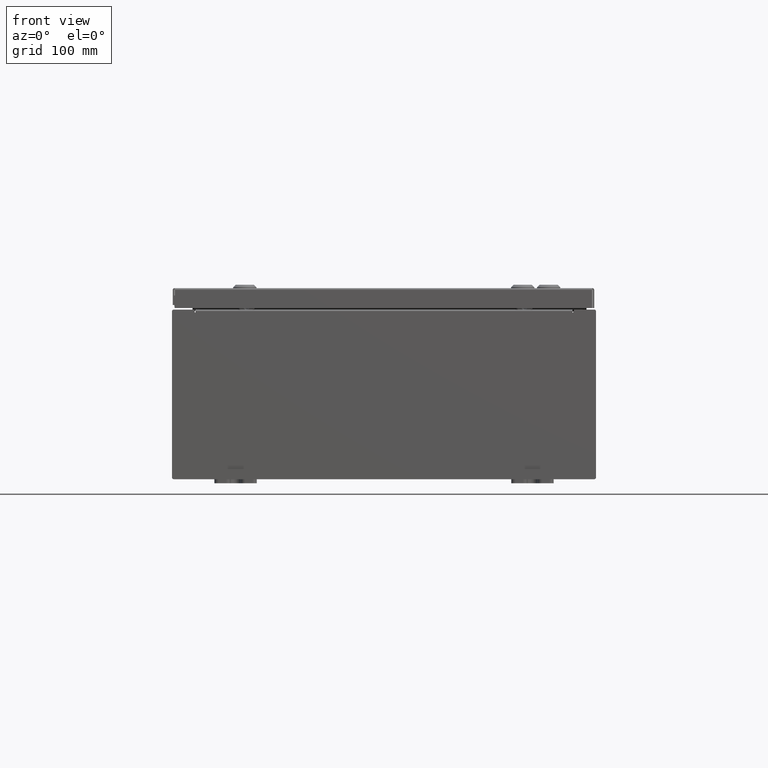
[diagram: clean part render]
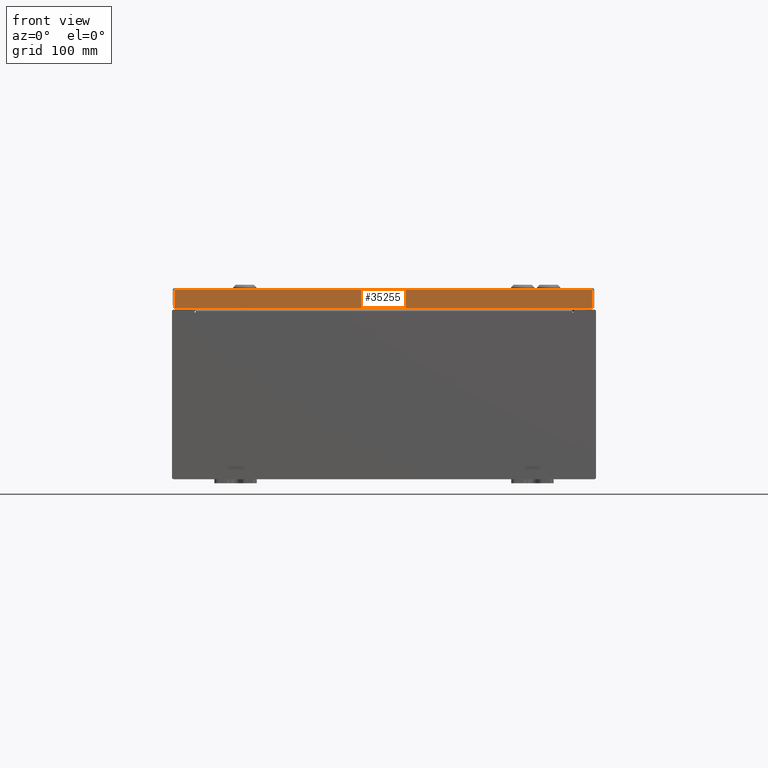
[diagram: same view with one face highlighted and labeled with its STEP entity id]
A machine part, front view. The second image highlights one B-rep face of the part: STEP entity #35255.
In plain terms, the highlighted planar face has unit normal (-0, 1, -0).
Its self-contained STEP definition (entity closure, byte-faithful):
#968 = ORIENTED_EDGE ( 'NONE', *, *, #25019, .F. ) ;
#2638 = ORIENTED_EDGE ( 'NONE', *, *, #31268, .F. ) ;
#3077 = LINE ( 'NONE', #29687, #40636 ) ;
#5268 = EDGE_LOOP ( 'NONE', ( #2638, #58288, #968, #55252 ) ) ;
#8003 = DIRECTION ( 'NONE',  ( -3.132763603081817200E-031, 1.000000000000000000, -2.532419924601866100E-015 ) ) ;
#10872 = EDGE_CURVE ( 'NONE', #16736, #58334, #61936, .T. ) ;
#14056 = VECTOR ( 'NONE', #48273, 39.37007874015748100 ) ;
#16348 = CARTESIAN_POINT ( 'NONE',  ( 9.848657864376265900, -11.93750000000000200, -0.9376999999999997600 ) ) ;
#16736 = VERTEX_POINT ( 'NONE', #53741 ) ;
#20755 = EDGE_CURVE ( 'NONE', #25492, #41011, #53168, .T. ) ;
#21862 = CARTESIAN_POINT ( 'NONE',  ( 9.848657864376265900, -11.93750000000000000, -0.07469999999999980800 ) ) ;
#22518 = PLANE ( 'NONE',  #51559 ) ;
#24540 = VECTOR ( 'NONE', #58170, 39.37007874015748100 ) ;
#25019 = EDGE_CURVE ( 'NONE', #58334, #41011, #3077, .T. ) ;
#25492 = VERTEX_POINT ( 'NONE', #57898 ) ;
#28351 = CARTESIAN_POINT ( 'NONE',  ( 9.937499999999998200, -11.93750000000000000, -0.08770000000000008300 ) ) ;
#29687 = CARTESIAN_POINT ( 'NONE',  ( 9.937499999999998200, -11.93750000000000200, -0.9376999999999997600 ) ) ;
#31268 = EDGE_CURVE ( 'NONE', #25492, #16736, #37564, .T. ) ;
#34589 = DIRECTION ( 'NONE',  ( -1.000000000000000000, 4.379057701015054300E-047, 1.237063242414006300E-016 ) ) ;
#35255 = ADVANCED_FACE ( 'NONE', ( #54350 ), #22518, .F. ) ;
#37260 = CARTESIAN_POINT ( 'NONE',  ( 3.739736551178919700E-030, -11.93750000000000000, 3.049157650594635900E-014 ) ) ;
#37564 = LINE ( 'NONE', #28351, #24540 ) ;
#40636 = VECTOR ( 'NONE', #34589, 39.37007874015748100 ) ;
#41011 = VERTEX_POINT ( 'NONE', #53524 ) ;
#42226 = DIRECTION ( 'NONE',  ( 0.0000000000000000000, 2.532419924601866100E-015, 1.000000000000000000 ) ) ;
#43526 = CARTESIAN_POINT ( 'NONE',  ( -9.848657864376271200, -11.93750000000000000, 3.049157650594635900E-014 ) ) ;
#45779 = VECTOR ( 'NONE', #56180, 39.37007874015748100 ) ;
#48273 = DIRECTION ( 'NONE',  ( 0.0000000000000000000, -2.532419924601866100E-015, -1.000000000000000000 ) ) ;
#51559 = AXIS2_PLACEMENT_3D ( 'NONE', #37260, #8003, #42226 ) ;
#53168 = LINE ( 'NONE', #43526, #14056 ) ;
#53524 = CARTESIAN_POINT ( 'NONE',  ( -9.848657864376273000, -11.93750000000000200, -0.9376999999999973100 ) ) ;
#53741 = CARTESIAN_POINT ( 'NONE',  ( 9.848657864376269400, -11.93750000000000000, -0.08770000000000008300 ) ) ;
#54350 = FACE_OUTER_BOUND ( 'NONE', #5268, .T. ) ;
#55252 = ORIENTED_EDGE ( 'NONE', *, *, #10872, .F. ) ;
#56180 = DIRECTION ( 'NONE',  ( -0.0000000000000000000, -2.532419924601866100E-015, -1.000000000000000000 ) ) ;
#57898 = CARTESIAN_POINT ( 'NONE',  ( -9.848657864376273000, -11.93750000000000000, -0.08770000000000008300 ) ) ;
#58170 = DIRECTION ( 'NONE',  ( 1.000000000000000000, 3.132763603081817700E-031, -7.843572268217992100E-046 ) ) ;
#58288 = ORIENTED_EDGE ( 'NONE', *, *, #20755, .T. ) ;
#58334 = VERTEX_POINT ( 'NONE', #16348 ) ;
#61936 = LINE ( 'NONE', #21862, #45779 ) ;